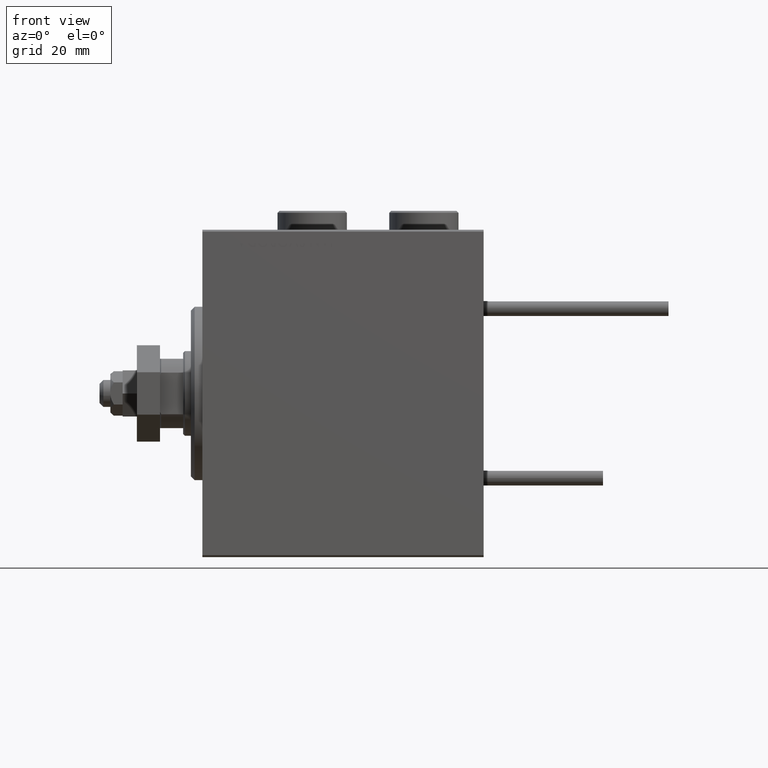
[diagram: clean part render]
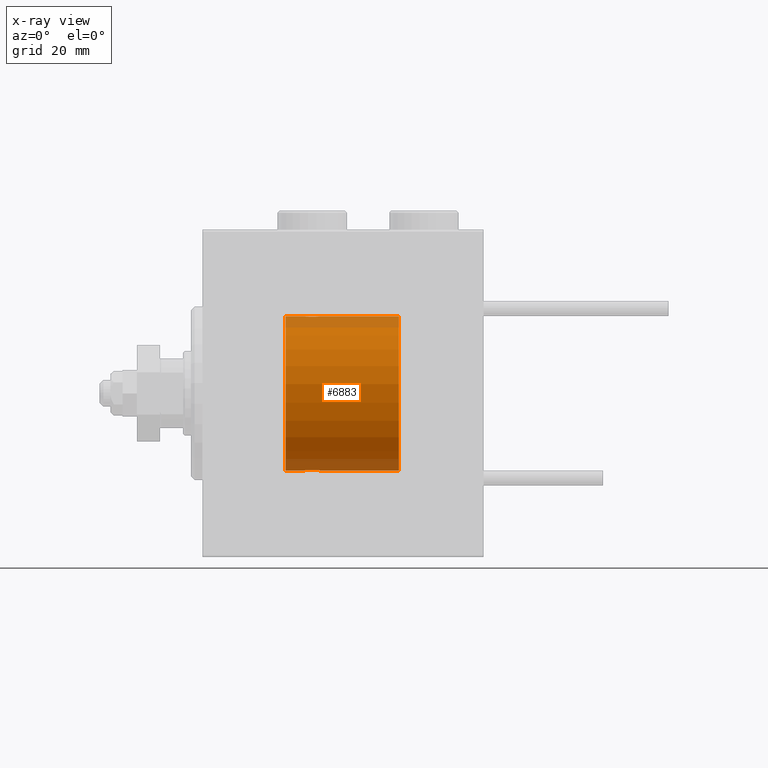
[diagram: x-ray — body ghosted, one internal face saturated and labeled with its STEP entity id]
A machine part, front view, then the same camera in x-ray: the body is ghosted and one INTERNAL B-rep face — a face not visible from any outside direction — is saturated and labeled: STEP entity #6883.
In plain terms, the highlighted cylindrical surface (partial cylindrical patch) has radius 20 mm, axis along (-1, -0, -0).
Its self-contained STEP definition (entity closure, byte-faithful):
#618 = CARTESIAN_POINT ( 'NONE',  ( 21.60000000000000142, 0.000000000000000000, 0.000000000000000000 ) ) ;
#976 = CARTESIAN_POINT ( 'NONE',  ( 29.01923512135276795, -1.935816449315124643, -19.90611141657401717 ) ) ;
#1242 = CARTESIAN_POINT ( 'NONE',  ( 28.23922743968432059, -1.987205673487808966, -19.90104673894211018 ) ) ;
#1458 = VERTEX_POINT ( 'NONE', #41144 ) ;
#1714 = ORIENTED_EDGE ( 'NONE', *, *, #20131, .T. ) ;
#1845 = VERTEX_POINT ( 'NONE', #46365 ) ;
#2305 = VERTEX_POINT ( 'NONE', #19680 ) ;
#2368 = CARTESIAN_POINT ( 'NONE',  ( 51.00000000000000711, 0.000000000000000000, 0.000000000000000000 ) ) ;
#3491 = CARTESIAN_POINT ( 'NONE',  ( 27.98076487864723561, -1.935816449315127530, 19.90611141657401717 ) ) ;
#4408 = CARTESIAN_POINT ( 'NONE',  ( 30.09941524884030173, -1.228758402364235502, -19.96307487248084911 ) ) ;
#5200 = CARTESIAN_POINT ( 'NONE',  ( 27.85651471266959334, -1.898187925611338533, -19.90978194174746818 ) ) ;
#6034 = CARTESIAN_POINT ( 'NONE',  ( 51.00000000000000711, 0.000000000000000000, 0.000000000000000000 ) ) ;
#6130 = AXIS2_PLACEMENT_3D ( 'NONE', #2368, #31455, #10547 ) ;
#6189 = EDGE_CURVE ( 'NONE', #19413, #1845, #32467, .T. ) ;
#6883 = ADVANCED_FACE ( 'NONE', ( #30938 ), #46855, .F. ) ;
#7473 = CARTESIAN_POINT ( 'NONE',  ( 28.36634803857552356, -1.999898234284064769, 19.89975896996866567 ) ) ;
#7641 = DIRECTION ( 'NONE',  ( -1.000000000000000000, -0.000000000000000000, -0.000000000000000000 ) ) ;
#7990 = CARTESIAN_POINT ( 'NONE',  ( 29.14348528733042798, -1.898187925611339200, 19.90978194174746818 ) ) ;
#8405 = CARTESIAN_POINT ( 'NONE',  ( 30.44755062882508412, -0.5243189001514996228, -19.99457699142849876 ) ) ;
#8621 = EDGE_CURVE ( 'NONE', #1845, #23341, #17792, .T. ) ;
#8657 = CARTESIAN_POINT ( 'NONE',  ( 29.38829437207091999, -1.796691196322316664, -19.91919800395357143 ) ) ;
#9065 = VECTOR ( 'NONE', #7641, 1000.000000000000000 ) ;
#9192 = ORIENTED_EDGE ( 'NONE', *, *, #49375, .F. ) ;
#9839 = EDGE_LOOP ( 'NONE', ( #9192, #1714, #27651, #10943, #25293, #16586, #47884, #47785 ) ) ;
#10547 = DIRECTION ( 'NONE',  ( 0.000000000000000000, 0.000000000000000000, 1.000000000000000000 ) ) ;
#10842 = CARTESIAN_POINT ( 'NONE',  ( 26.50000000000000355, -1.552596590610734385E-23, 20.00000000000000000 ) ) ;
#10943 = ORIENTED_EDGE ( 'NONE', *, *, #8621, .T. ) ;
#11005 = LINE ( 'NONE', #15238, #34590 ) ;
#11063 = AXIS2_PLACEMENT_3D ( 'NONE', #6034, #50555, #30397 ) ;
#11154 = CARTESIAN_POINT ( 'NONE',  ( 27.61170562792909067, -1.796691196322318662, 19.91919800395356788 ) ) ;
#11680 = CARTESIAN_POINT ( 'NONE',  ( 28.76077256031567586, -1.987205673487809410, 19.90104673894210663 ) ) ;
#11733 = DIRECTION ( 'NONE',  ( 0.000000000000000000, 0.000000000000000000, 1.000000000000000000 ) ) ;
#12614 = CARTESIAN_POINT ( 'NONE',  ( 29.82306668919470383, -1.505486175075772870, -19.94347168299867334 ) ) ;
#12867 = CARTESIAN_POINT ( 'NONE',  ( 28.63365196142448355, -1.999898234284062992, -19.89975896996866211 ) ) ;
#13134 = CARTESIAN_POINT ( 'NONE',  ( 28.76358144091416236, -1.986835489085814199, -19.90108393514801222 ) ) ;
#13136 = CARTESIAN_POINT ( 'NONE',  ( 30.50000000000000000, 2.449293582768784389E-15, -20.00000000000000000 ) ) ;
#13396 = CARTESIAN_POINT ( 'NONE',  ( 28.36941128289166159, -2.000100592782553921, -19.89973863218036598 ) ) ;
#13652 = CARTESIAN_POINT ( 'NONE',  ( 26.50000000000000355, -3.809869420541414000E-15, -20.00000000000000000 ) ) ;
#14868 = CARTESIAN_POINT ( 'NONE',  ( 30.24686976303072683, -1.008108445278686149, 19.97602680192586888 ) ) ;
#15131 = CARTESIAN_POINT ( 'NONE',  ( 30.50000000000000000, -0.2644051013330984135, 20.00000000000000355 ) ) ;
#15238 = CARTESIAN_POINT ( 'NONE',  ( 51.00000000000000711, 0.000000000000000000, 20.00000000000000000 ) ) ;
#15390 = CARTESIAN_POINT ( 'NONE',  ( 28.63058871710834552, -2.000100592782553921, 19.89973863218035888 ) ) ;
#15651 = CARTESIAN_POINT ( 'NONE',  ( 27.17693331080529973, -1.505486175075773980, 19.94347168299867334 ) ) ;
#15913 = CARTESIAN_POINT ( 'NONE',  ( 29.71805419472152465, -1.591668229360193587, 19.93669678979813042 ) ) ;
#16586 = ORIENTED_EDGE ( 'NONE', *, *, #20122, .F. ) ;
#17792 = LINE ( 'NONE', #29985, #38350 ) ;
#18838 = CARTESIAN_POINT ( 'NONE',  ( 30.09774691554731163, -1.230936344679276706, 19.96293863536309843 ) ) ;
#19101 = CARTESIAN_POINT ( 'NONE',  ( 29.38579076670728440, -1.797933656607917818, 19.91908554465557302 ) ) ;
#19366 = CARTESIAN_POINT ( 'NONE',  ( 27.85369326075355545, -1.897222639860597138, 19.90987429971497491 ) ) ;
#19413 = VERTEX_POINT ( 'NONE', #13136 ) ;
#19680 = CARTESIAN_POINT ( 'NONE',  ( 21.60000000000000142, 0.000000000000000000, 20.00000000000000000 ) ) ;
#19789 = LINE ( 'NONE', #48409, #9065 ) ;
#20122 = EDGE_CURVE ( 'NONE', #38456, #2305, #27762, .T. ) ;
#20131 = EDGE_CURVE ( 'NONE', #35514, #19413, #19789, .T. ) ;
#22955 = CARTESIAN_POINT ( 'NONE',  ( 51.00000000000000711, 0.000000000000000000, 20.00000000000000000 ) ) ;
#23341 = VERTEX_POINT ( 'NONE', #42171 ) ;
#23609 = CARTESIAN_POINT ( 'NONE',  ( 26.55244937117492299, -0.5243189001515022873, 19.99457699142850942 ) ) ;
#24119 = CARTESIAN_POINT ( 'NONE',  ( 29.01648532918905943, -1.936551476643006753, 19.90603968831098669 ) ) ;
#24546 = CARTESIAN_POINT ( 'NONE',  ( 30.24825913460018612, -1.005710574260838985, -19.97614991974274190 ) ) ;
#25293 = ORIENTED_EDGE ( 'NONE', *, *, #42849, .T. ) ;
#25590 = CARTESIAN_POINT ( 'NONE',  ( 27.61420923329272981, -1.797933656607917596, -19.91908554465558367 ) ) ;
#26120 = CARTESIAN_POINT ( 'NONE',  ( 27.17903093152710525, -1.507328959728492457, -19.94333197382385592 ) ) ;
#26125 = CARTESIAN_POINT ( 'NONE',  ( 51.00000000000000711, 2.449293598294706513E-15, -20.00000000000000000 ) ) ;
#27177 = DIRECTION ( 'NONE',  ( -1.000000000000000000, -0.000000000000000000, -0.000000000000000000 ) ) ;
#27596 = CARTESIAN_POINT ( 'NONE',  ( 26.75174086539981033, -1.005710574260840984, 19.97614991974274545 ) ) ;
#27651 = ORIENTED_EDGE ( 'NONE', *, *, #6189, .T. ) ;
#27762 = LINE ( 'NONE', #40474, #32728 ) ;
#27835 = CIRCLE ( 'NONE', #48148, 20.00000000000000000 ) ;
#27849 = CARTESIAN_POINT ( 'NONE',  ( 29.50067219139244656, -1.736582545981372183, 19.92459705242980306 ) ) ;
#28522 = CARTESIAN_POINT ( 'NONE',  ( 30.50000000000000000, 2.449293582768784389E-15, -20.00000000000000000 ) ) ;
#28782 = CARTESIAN_POINT ( 'NONE',  ( 29.72028945794465571, -1.589957321664208223, -19.93683391378736047 ) ) ;
#29170 = EDGE_CURVE ( 'NONE', #38456, #1458, #49226, .T. ) ;
#29304 = CARTESIAN_POINT ( 'NONE',  ( 29.14630673924643744, -1.897222639860594029, -19.90987429971496780 ) ) ;
#29822 = CARTESIAN_POINT ( 'NONE',  ( 26.55320515808203297, -0.5270924491156698810, -19.99450181871976184 ) ) ;
#29985 = CARTESIAN_POINT ( 'NONE',  ( 51.00000000000000711, 2.449293598294706513E-15, -20.00000000000000000 ) ) ;
#30397 = DIRECTION ( 'NONE',  ( 0.000000000000000000, 0.000000000000000000, 1.000000000000000000 ) ) ;
#30938 = FACE_OUTER_BOUND ( 'NONE', #9839, .T. ) ;
#31293 = CARTESIAN_POINT ( 'NONE',  ( 30.50000000000000000, -3.219052034369973620E-16, 20.00000000000000000 ) ) ;
#31455 = DIRECTION ( 'NONE',  ( -1.000000000000000000, -0.000000000000000000, -0.000000000000000000 ) ) ;
#31865 = DIRECTION ( 'NONE',  ( -1.000000000000000000, 0.000000000000000000, 0.000000000000000000 ) ) ;
#32467 = B_SPLINE_CURVE_WITH_KNOTS ( 'NONE', 3,
 ( #28522, #44694, #8405, #24546, #4408, #12614, #28782, #44949, #8657, #29304, #976, #13134, #12867, #13396, #1242, #49983, #5200, #25590, #45741, #45213, #26120, #37003, #34069, #29822, #50245, #13652 ),
 .UNSPECIFIED., .F., .F.,
 ( 4, 2, 2, 2, 2, 2, 2, 2, 2, 2, 2, 2, 4 ),
 ( 0.006256819553329842284, 0.007038738568778818427, 0.007820657584227792836, 0.008211617091952278305, 0.008602576599676762040, 0.008993536107401245774, 0.009384495615125729509, 0.009775455122850213244, 0.01016641463057469871, 0.01055737413829918071, 0.01094833364602366618, 0.01173025266147263365, 0.01251217167692159939 ),
 .UNSPECIFIED. ) ;
#32728 = VECTOR ( 'NONE', #48157, 1000.000000000000000 ) ;
#34069 = CARTESIAN_POINT ( 'NONE',  ( 26.75313023696928738, -1.008108445278687704, -19.97602680192586533 ) ) ;
#34590 = VECTOR ( 'NONE', #27177, 1000.000000000000000 ) ;
#35514 = VERTEX_POINT ( 'NONE', #26125 ) ;
#35995 = VERTEX_POINT ( 'NONE', #22955 ) ;
#37003 = CARTESIAN_POINT ( 'NONE',  ( 26.90225308445269903, -1.230936344679278260, -19.96293863536309132 ) ) ;
#38204 = DIRECTION ( 'NONE',  ( -1.000000000000000000, -0.000000000000000000, -0.000000000000000000 ) ) ;
#38350 = VECTOR ( 'NONE', #38204, 1000.000000000000000 ) ;
#38456 = VERTEX_POINT ( 'NONE', #10842 ) ;
#39533 = CARTESIAN_POINT ( 'NONE',  ( 27.49693443660397207, -1.735203193119897458, 19.92471783160910448 ) ) ;
#39837 = CIRCLE ( 'NONE', #11063, 20.00000000000000000 ) ;
#40051 = CARTESIAN_POINT ( 'NONE',  ( 26.90058475115969117, -1.228758402364236169, 19.96307487248083845 ) ) ;
#40309 = CARTESIAN_POINT ( 'NONE',  ( 29.82096906847289475, -1.507328959728490680, 19.94333197382385592 ) ) ;
#40474 = CARTESIAN_POINT ( 'NONE',  ( 51.00000000000000711, 0.000000000000000000, 20.00000000000000000 ) ) ;
#41144 = CARTESIAN_POINT ( 'NONE',  ( 30.50000000000000000, -3.219052034369973620E-16, 20.00000000000000000 ) ) ;
#41454 = EDGE_CURVE ( 'NONE', #35995, #1458, #11005, .T. ) ;
#42171 = CARTESIAN_POINT ( 'NONE',  ( 21.60000000000000142, 2.449293598294706513E-15, -20.00000000000000000 ) ) ;
#42849 = EDGE_CURVE ( 'NONE', #23341, #2305, #27835, .T. ) ;
#43770 = CARTESIAN_POINT ( 'NONE',  ( 28.23641855908586251, -1.986835489085815309, 19.90108393514801932 ) ) ;
#44276 = CARTESIAN_POINT ( 'NONE',  ( 27.27971054205536205, -1.589957321664212220, 19.93683391378736758 ) ) ;
#44694 = CARTESIAN_POINT ( 'NONE',  ( 30.49999999999999645, -0.2610801504281900498, -19.99999999999999645 ) ) ;
#44949 = CARTESIAN_POINT ( 'NONE',  ( 29.50306556339602437, -1.735203193119894349, -19.92471783160910803 ) ) ;
#45213 = CARTESIAN_POINT ( 'NONE',  ( 27.28194580527848601, -1.591668229360197140, -19.93669678979812332 ) ) ;
#45741 = CARTESIAN_POINT ( 'NONE',  ( 27.49932780860757475, -1.736582545981376180, -19.92459705242981371 ) ) ;
#46365 = CARTESIAN_POINT ( 'NONE',  ( 26.50000000000000355, -3.809869420541414000E-15, -20.00000000000000000 ) ) ;
#46855 = CYLINDRICAL_SURFACE ( 'NONE', #6130, 20.00000000000000000 ) ;
#47785 = ORIENTED_EDGE ( 'NONE', *, *, #41454, .F. ) ;
#47884 = ORIENTED_EDGE ( 'NONE', *, *, #29170, .T. ) ;
#48148 = AXIS2_PLACEMENT_3D ( 'NONE', #618, #31865, #11733 ) ;
#48157 = DIRECTION ( 'NONE',  ( -1.000000000000000000, -0.000000000000000000, -0.000000000000000000 ) ) ;
#48409 = CARTESIAN_POINT ( 'NONE',  ( 51.00000000000000711, 2.449293598294706513E-15, -20.00000000000000000 ) ) ;
#49226 = B_SPLINE_CURVE_WITH_KNOTS ( 'NONE', 3,
 ( #51965, #51709, #23609, #27596, #40051, #15651, #44276, #39533, #11154, #19366, #3491, #43770, #7473, #15390, #11680, #24119, #7990, #19101, #27849, #15913, #40309, #18838, #14868, #51453, #15131, #31293 ),
 .UNSPECIFIED., .F., .F.,
 ( 4, 2, 2, 2, 2, 2, 2, 2, 2, 2, 2, 2, 4 ),
 ( 0.006256819553329836213, 0.007038738568778812356, 0.007820657584227787631, 0.008211617091952271366, 0.008602576599676756836, 0.008993536107401240570, 0.009384495615125724305, 0.009775455122850208040, 0.01016641463057469177, 0.01055737413829917551, 0.01094833364602365924, 0.01173025266147262671, 0.01251217167692159245 ),
 .UNSPECIFIED. ) ;
#49375 = EDGE_CURVE ( 'NONE', #35514, #35995, #39837, .T. ) ;
#49983 = CARTESIAN_POINT ( 'NONE',  ( 27.98351467081095123, -1.936551476643005198, -19.90603968831098314 ) ) ;
#50245 = CARTESIAN_POINT ( 'NONE',  ( 26.50000000000001066, -0.2644051013331030209, -20.00000000000000355 ) ) ;
#50555 = DIRECTION ( 'NONE',  ( -1.000000000000000000, 0.000000000000000000, 0.000000000000000000 ) ) ;
#51453 = CARTESIAN_POINT ( 'NONE',  ( 30.44679484191799901, -0.5270924491156694369, 19.99450181871976540 ) ) ;
#51709 = CARTESIAN_POINT ( 'NONE',  ( 26.50000000000001421, -0.2610801504281929364, 20.00000000000000000 ) ) ;
#51965 = CARTESIAN_POINT ( 'NONE',  ( 26.50000000000000355, -1.552596590610734385E-23, 20.00000000000000000 ) ) ;